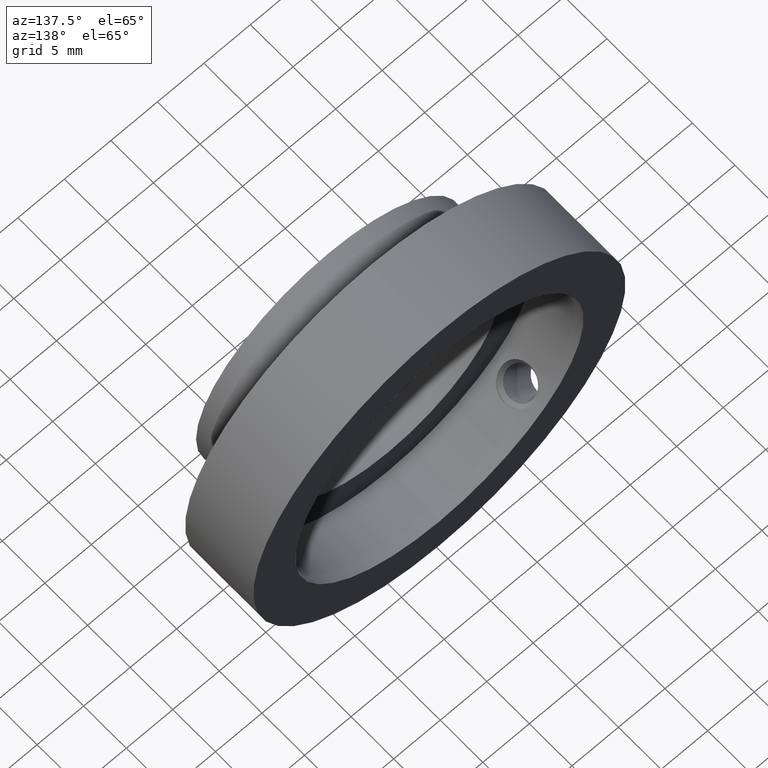
[diagram: clean part render]
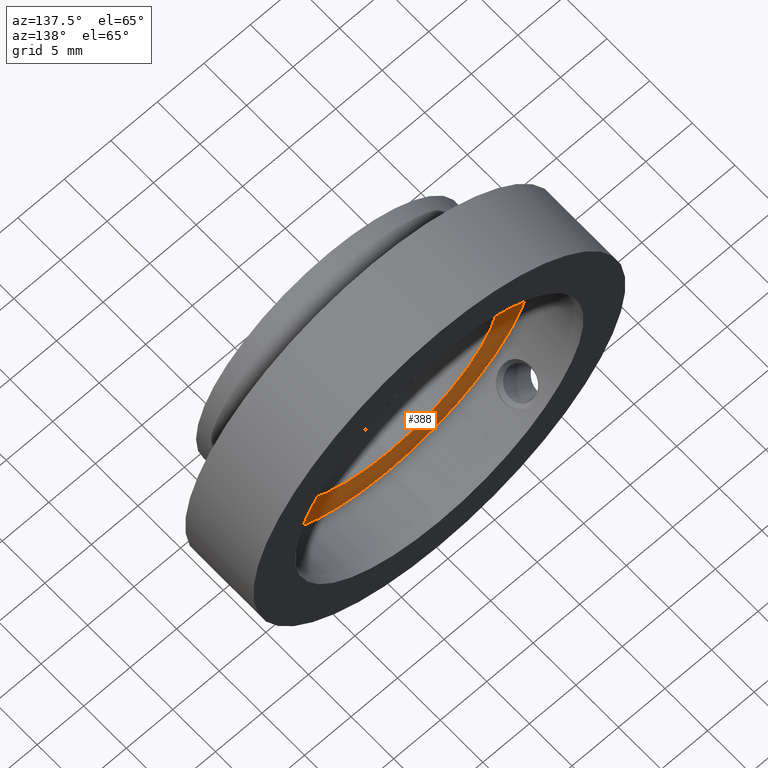
[diagram: same view with one face highlighted and labeled with its STEP entity id]
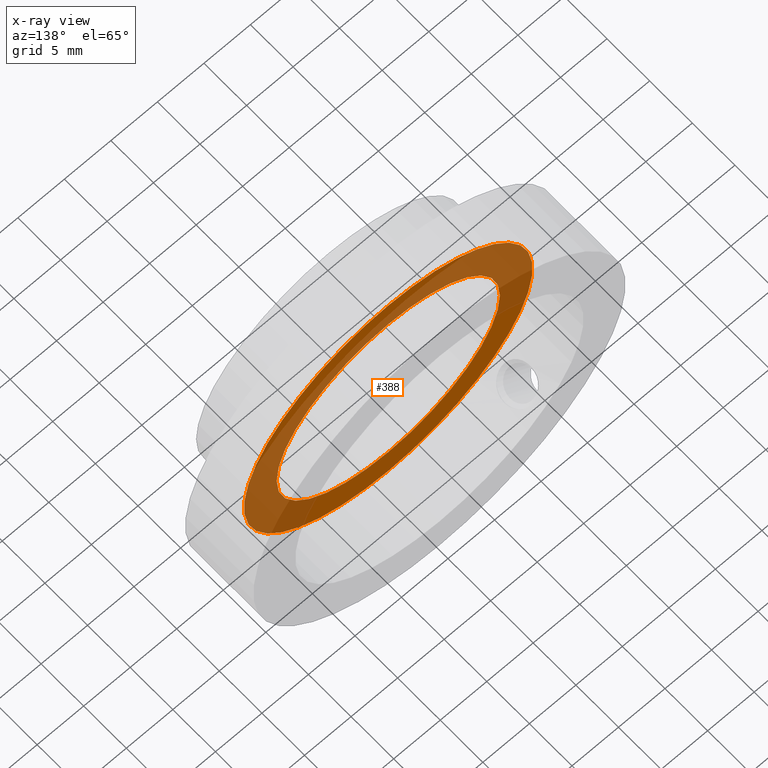
[diagram: x-ray of the same camera — body ghosted, the highlighted face saturated]
A machine part, auxiliary view. The second image highlights one B-rep face of the part: STEP entity #388.
The next image is the same camera in x-ray: the body ghosted, the highlighted face saturated — about 58% of this face is hidden behind the body in this view.
In plain terms, the highlighted planar face has unit normal (0, -1, -0).
Its self-contained STEP definition (entity closure, byte-faithful):
#39 = DIRECTION ( 'NONE',  ( -0.0000000000000000000, -1.000000000000000000, -0.0000000000000000000 ) ) ;
#41 = CARTESIAN_POINT ( 'NONE',  ( 0.0000000000000000000, -2.003278688524599000, 0.0000000000000000000 ) ) ;
#44 = DIRECTION ( 'NONE',  ( 0.0000000000000000000, 0.0000000000000000000, -1.000000000000000000 ) ) ;
#51 = DIRECTION ( 'NONE',  ( 0.0000000000000000000, 0.0000000000000000000, -1.000000000000000000 ) ) ;
#64 = EDGE_CURVE ( 'NONE', #1203, #88, #1116, .T. ) ;
#88 = VERTEX_POINT ( 'NONE', #429 ) ;
#111 = DIRECTION ( 'NONE',  ( -0.0000000000000000000, -1.000000000000000000, -0.0000000000000000000 ) ) ;
#123 = CIRCLE ( 'NONE', #416, 15.50000000000000000 ) ;
#129 = EDGE_CURVE ( 'NONE', #960, #1108, #123, .T. ) ;
#185 = FACE_OUTER_BOUND ( 'NONE', #834, .T. ) ;
#195 = ORIENTED_EDGE ( 'NONE', *, *, #1083, .F. ) ;
#223 = AXIS2_PLACEMENT_3D ( 'NONE', #426, #39, #51 ) ;
#241 = DIRECTION ( 'NONE',  ( -0.0000000000000000000, -1.000000000000000000, -0.0000000000000000000 ) ) ;
#268 = CIRCLE ( 'NONE', #856, 12.00000000000000000 ) ;
#277 = CARTESIAN_POINT ( 'NONE',  ( 0.0000000000000000000, -2.003278688524598600, -15.50000000000000000 ) ) ;
#356 = AXIS2_PLACEMENT_3D ( 'NONE', #761, #111, #574 ) ;
#382 = PLANE ( 'NONE',  #1102 ) ;
#388 = ADVANCED_FACE ( 'NONE', ( #185, #411 ), #382, .F. ) ;
#411 = FACE_BOUND ( 'NONE', #776, .T. ) ;
#416 = AXIS2_PLACEMENT_3D ( 'NONE', #613, #241, #422 ) ;
#422 = DIRECTION ( 'NONE',  ( 0.0000000000000000000, 0.0000000000000000000, -1.000000000000000000 ) ) ;
#426 = CARTESIAN_POINT ( 'NONE',  ( 0.0000000000000000000, -2.003278688524599000, 0.0000000000000000000 ) ) ;
#429 = CARTESIAN_POINT ( 'NONE',  ( 0.0000000000000000000, -2.003278688524599000, -12.00000000000000000 ) ) ;
#524 = ORIENTED_EDGE ( 'NONE', *, *, #129, .F. ) ;
#551 = ORIENTED_EDGE ( 'NONE', *, *, #64, .T. ) ;
#574 = DIRECTION ( 'NONE',  ( 0.0000000000000000000, 0.0000000000000000000, -1.000000000000000000 ) ) ;
#613 = CARTESIAN_POINT ( 'NONE',  ( 0.0000000000000000000, -2.003278688524598600, 0.0000000000000000000 ) ) ;
#636 = CARTESIAN_POINT ( 'NONE',  ( 1.469576158976823900E-015, -2.003278688524599000, 12.00000000000000000 ) ) ;
#672 = CARTESIAN_POINT ( 'NONE',  ( 1.898202538678397600E-015, -2.003278688524598600, 15.50000000000000000 ) ) ;
#760 = EDGE_CURVE ( 'NONE', #88, #1203, #268, .T. ) ;
#761 = CARTESIAN_POINT ( 'NONE',  ( 0.0000000000000000000, -2.003278688524598600, 0.0000000000000000000 ) ) ;
#762 = CARTESIAN_POINT ( 'NONE',  ( -12.00000000000000000, -2.003278688524599000, 0.0000000000000000000 ) ) ;
#776 = EDGE_LOOP ( 'NONE', ( #1009, #551 ) ) ;
#782 = DIRECTION ( 'NONE',  ( 0.0000000000000000000, -1.000000000000000000, -0.0000000000000000000 ) ) ;
#792 = DIRECTION ( 'NONE',  ( -0.0000000000000000000, -1.000000000000000000, -0.0000000000000000000 ) ) ;
#834 = EDGE_LOOP ( 'NONE', ( #524, #195 ) ) ;
#856 = AXIS2_PLACEMENT_3D ( 'NONE', #41, #792, #44 ) ;
#931 = CIRCLE ( 'NONE', #356, 15.50000000000000000 ) ;
#960 = VERTEX_POINT ( 'NONE', #277 ) ;
#1009 = ORIENTED_EDGE ( 'NONE', *, *, #760, .T. ) ;
#1083 = EDGE_CURVE ( 'NONE', #1108, #960, #931, .T. ) ;
#1102 = AXIS2_PLACEMENT_3D ( 'NONE', #762, #782, #1157 ) ;
#1108 = VERTEX_POINT ( 'NONE', #672 ) ;
#1116 = CIRCLE ( 'NONE', #223, 12.00000000000000000 ) ;
#1157 = DIRECTION ( 'NONE',  ( 0.0000000000000000000, 0.0000000000000000000, -1.000000000000000000 ) ) ;
#1203 = VERTEX_POINT ( 'NONE', #636 ) ;